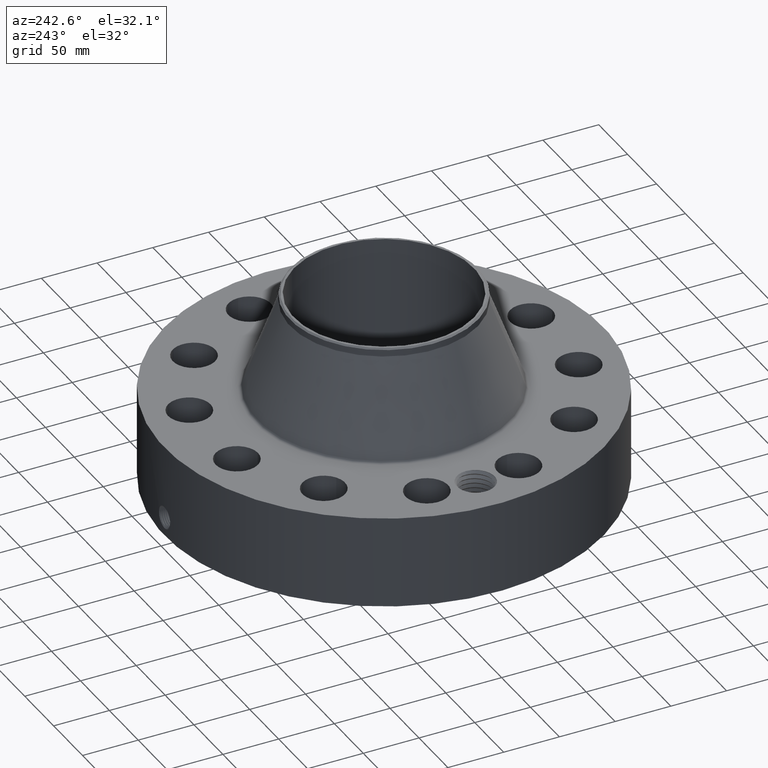
[diagram: clean part render]
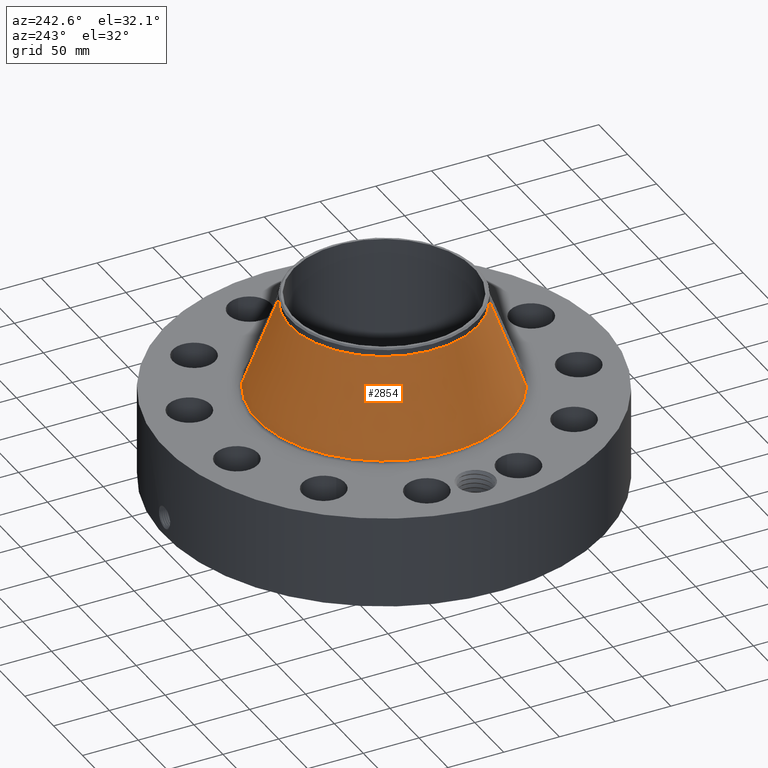
[diagram: same view with one face highlighted and labeled with its STEP entity id]
A machine part, auxiliary view. The second image highlights one B-rep face of the part: STEP entity #2854.
In plain terms, the highlighted conical surface has half-angle 20.207 deg.
Its self-contained STEP definition (entity closure, byte-faithful):
#2121=AXIS2_PLACEMENT_3D('Circle Axis2P3D',#2119,#2120,$) ;
#2815=AXIS2_PLACEMENT_3D('Cone Axis2P3D',#2812,#2813,#2814) ;
#2845=AXIS2_PLACEMENT_3D('Circle Axis2P3D',#2843,#2844,$) ;
#2097=CARTESIAN_POINT('Vertex',(2.14355370533,3.92374873844,3.57854974302)) ;
#2104=CARTESIAN_POINT('Vertex',(-2.14355370533,-3.92374873844,3.57854974302)) ;
#2119=CARTESIAN_POINT('Axis2P3D Location',(0.,0.,3.57854974302)) ;
#2812=CARTESIAN_POINT('Axis2P3D Location',(0.,0.,6.7194588416)) ;
#2817=CARTESIAN_POINT('Line Origine',(1.8664246829,3.41646746556,5.14900429231)) ;
#2821=CARTESIAN_POINT('Vertex',(1.58929566048,2.90918619268,6.7194588416)) ;
#2828=CARTESIAN_POINT('Vertex',(-1.58929566048,-2.90918619268,6.7194588416)) ;
#2831=CARTESIAN_POINT('Line Origine',(-1.8664246829,-3.41646746556,5.14900429231)) ;
#2843=CARTESIAN_POINT('Axis2P3D Location',(0.,0.,6.7194588416)) ;
#2120=DIRECTION('Axis2P3D Direction',(0.,0.,-0.0393700787402)) ;
#2813=DIRECTION('Axis2P3D Direction',(0.,0.,-0.0393700787402)) ;
#2814=DIRECTION('Axis2P3D XDirection',(-0.0188750212049,-0.0345504945626,0.)) ;
#2818=DIRECTION('Vector Direction',(0.00651978733149,0.0119343906585,-0.0369467967863)) ;
#2832=DIRECTION('Vector Direction',(-0.00651978733149,-0.0119343906585,-0.0369467967863)) ;
#2844=DIRECTION('Axis2P3D Direction',(0.,0.,-0.0393700787402)) ;
#2819=VECTOR('Line Direction',#2818,0.0393700787402) ;
#2833=VECTOR('Line Direction',#2832,0.0393700787402) ;
#2849=ORIENTED_EDGE('',*,*,#2123,.F.) ;
#2850=ORIENTED_EDGE('',*,*,#2835,.T.) ;
#2851=ORIENTED_EDGE('',*,*,#2847,.T.) ;
#2852=ORIENTED_EDGE('',*,*,#2823,.F.) ;
#2854=ADVANCED_FACE('PartBody',(#2853),#2816,.T.) ;
#2122=CIRCLE('generated circle',#2121,4.4710878598) ;
#2846=CIRCLE('generated circle',#2845,3.31500000001) ;
#2816=CONICAL_SURFACE('Cone',#2815,3.31500000001,0.352685025753) ;
#2123=EDGE_CURVE('',#2105,#2098,#2122,.T.) ;
#2823=EDGE_CURVE('',#2098,#2822,#2820,.F.) ;
#2835=EDGE_CURVE('',#2105,#2829,#2834,.F.) ;
#2847=EDGE_CURVE('',#2829,#2822,#2846,.T.) ;
#2848=EDGE_LOOP('',(#2849,#2850,#2851,#2852)) ;
#2853=FACE_OUTER_BOUND('',#2848,.T.) ;
#2820=LINE('Line',#2817,#2819) ;
#2834=LINE('Line',#2831,#2833) ;
#2098=VERTEX_POINT('',#2097) ;
#2105=VERTEX_POINT('',#2104) ;
#2822=VERTEX_POINT('',#2821) ;
#2829=VERTEX_POINT('',#2828) ;